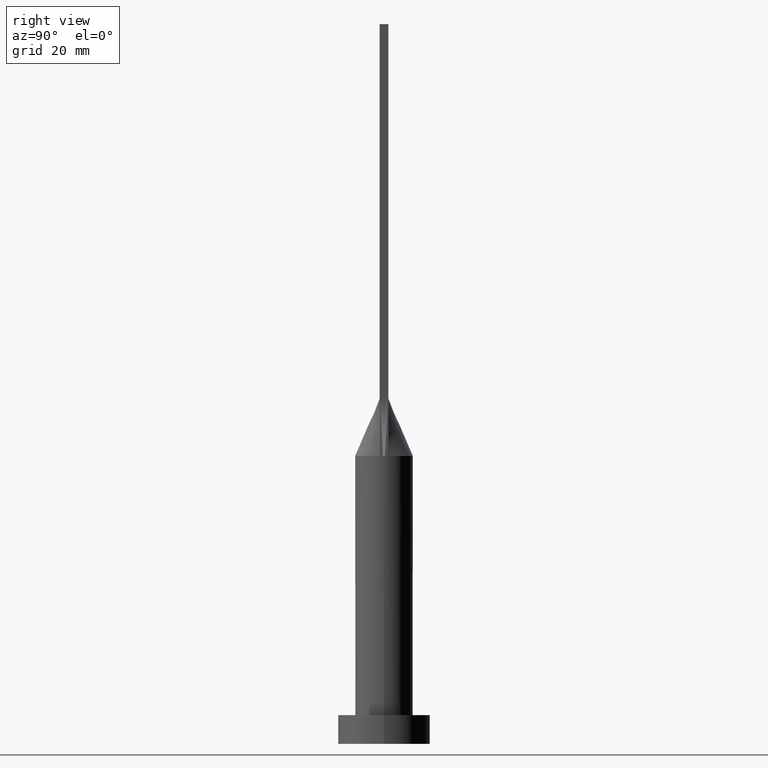
[diagram: clean part render]
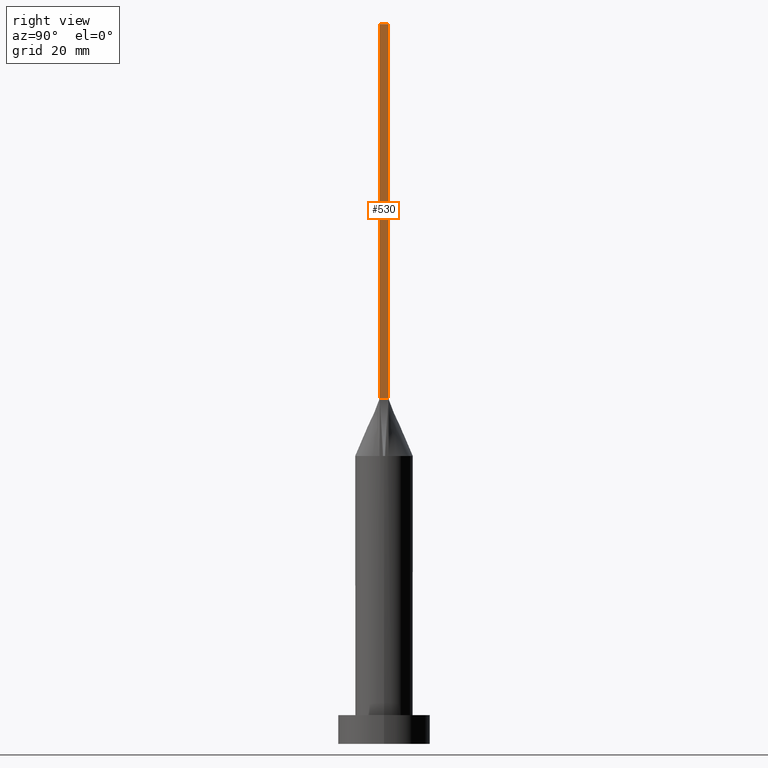
[diagram: same view with one face highlighted and labeled with its STEP entity id]
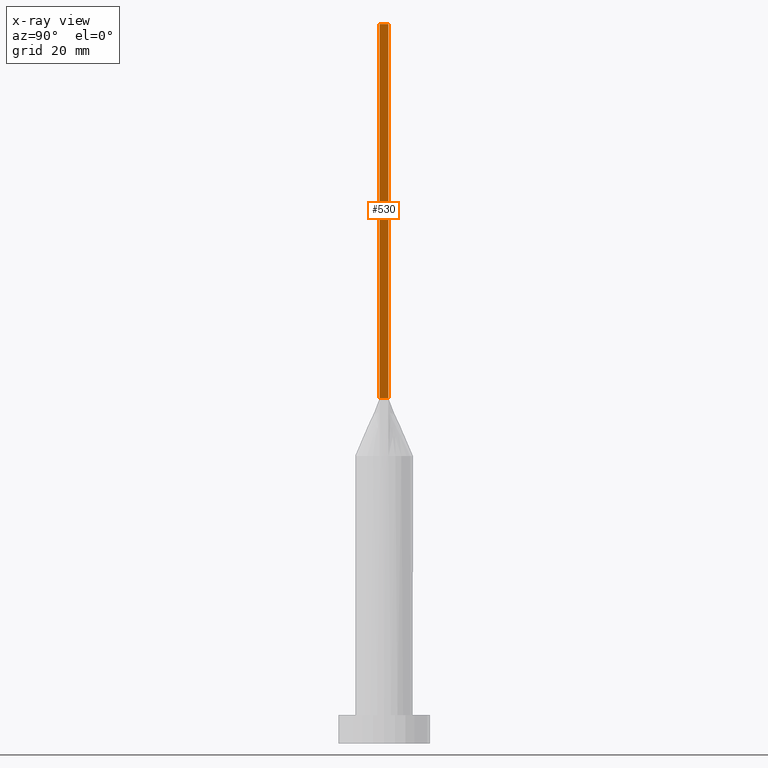
[diagram: x-ray of the same camera — body ghosted, the highlighted face saturated]
A machine part, right view. The second image highlights one B-rep face of the part: STEP entity #530.
The next image is the same camera in x-ray: the body ghosted, the highlighted face saturated — about 0% of this face is hidden behind the body in this view.
In plain terms, the highlighted planar face has unit normal (-1, 0, 0).
Its self-contained STEP definition (entity closure, byte-faithful):
#25 = EDGE_CURVE ( 'NONE', #526, #617, #64, .T. ) ;
#29 = CARTESIAN_POINT ( 'NONE',  ( 4.750000000000000000, -0.7499999999999997780, 60.00000000000000000 ) ) ;
#31 = ORIENTED_EDGE ( 'NONE', *, *, #25, .T. ) ;
#64 = LINE ( 'NONE', #437, #180 ) ;
#66 = EDGE_CURVE ( 'NONE', #617, #325, #85, .T. ) ;
#85 = LINE ( 'NONE', #179, #290 ) ;
#122 = CARTESIAN_POINT ( 'NONE',  ( 4.750000000000000000, 0.7500000000000002220, 60.00000000000000000 ) ) ;
#153 = DIRECTION ( 'NONE',  ( 0.000000000000000000, 0.000000000000000000, 1.000000000000000000 ) ) ;
#179 = CARTESIAN_POINT ( 'NONE',  ( 4.750000000000000000, 0.7500000000000002220, 60.00000000000000000 ) ) ;
#180 = VECTOR ( 'NONE', #529, 1000.000000000000000 ) ;
#212 = EDGE_LOOP ( 'NONE', ( #556, #561, #562, #31 ) ) ;
#213 = CARTESIAN_POINT ( 'NONE',  ( 4.750000000000000000, 0.7500000000000002220, 125.0000000000000000 ) ) ;
#227 = DIRECTION ( 'NONE',  ( -0.000000000000000000, -0.000000000000000000, -1.000000000000000000 ) ) ;
#243 = DIRECTION ( 'NONE',  ( -0.000000000000000000, 1.000000000000000000, -0.000000000000000000 ) ) ;
#244 = CARTESIAN_POINT ( 'NONE',  ( 4.750000000000000000, -0.7499999999999997780, 125.0000000000000000 ) ) ;
#286 = VERTEX_POINT ( 'NONE', #213 ) ;
#290 = VECTOR ( 'NONE', #243, 1000.000000000000000 ) ;
#302 = AXIS2_PLACEMENT_3D ( 'NONE', #397, #520, #153 ) ;
#325 = VERTEX_POINT ( 'NONE', #122 ) ;
#376 = EDGE_CURVE ( 'NONE', #286, #325, #499, .T. ) ;
#397 = CARTESIAN_POINT ( 'NONE',  ( 4.750000000000000000, -0.7499999999999997780, 125.0000000000000000 ) ) ;
#423 = VECTOR ( 'NONE', #514, 1000.000000000000000 ) ;
#437 = CARTESIAN_POINT ( 'NONE',  ( 4.750000000000000000, -0.7499999999999997780, 125.0000000000000000 ) ) ;
#444 = CARTESIAN_POINT ( 'NONE',  ( 4.750000000000000000, -0.7499999999999997780, 125.0000000000000000 ) ) ;
#475 = LINE ( 'NONE', #244, #423 ) ;
#478 = VECTOR ( 'NONE', #227, 1000.000000000000000 ) ;
#490 = FACE_OUTER_BOUND ( 'NONE', #212, .T. ) ;
#494 = EDGE_CURVE ( 'NONE', #526, #286, #475, .T. ) ;
#497 = CARTESIAN_POINT ( 'NONE',  ( 4.750000000000000000, 0.7500000000000002220, 125.0000000000000000 ) ) ;
#499 = LINE ( 'NONE', #497, #478 ) ;
#514 = DIRECTION ( 'NONE',  ( 0.000000000000000000, 1.000000000000000000, 0.000000000000000000 ) ) ;
#520 = DIRECTION ( 'NONE',  ( -1.000000000000000000, 0.000000000000000000, 0.000000000000000000 ) ) ;
#526 = VERTEX_POINT ( 'NONE', #444 ) ;
#529 = DIRECTION ( 'NONE',  ( -0.000000000000000000, -0.000000000000000000, -1.000000000000000000 ) ) ;
#530 = ADVANCED_FACE ( 'NONE', ( #490 ), #531, .F. ) ;
#531 = PLANE ( 'NONE',  #302 ) ;
#556 = ORIENTED_EDGE ( 'NONE', *, *, #66, .T. ) ;
#561 = ORIENTED_EDGE ( 'NONE', *, *, #376, .F. ) ;
#562 = ORIENTED_EDGE ( 'NONE', *, *, #494, .F. ) ;
#617 = VERTEX_POINT ( 'NONE', #29 ) ;